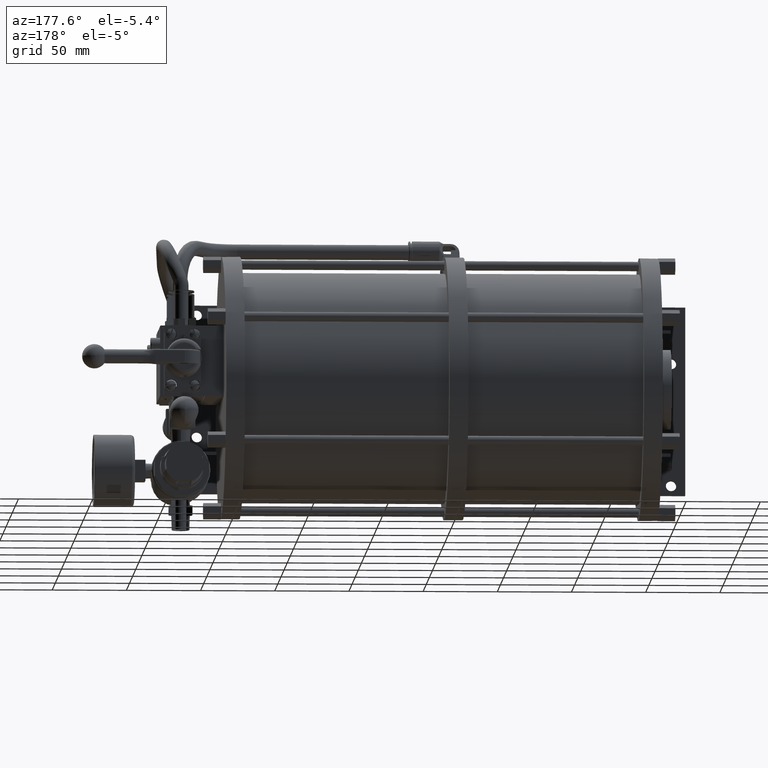
[diagram: clean part render]
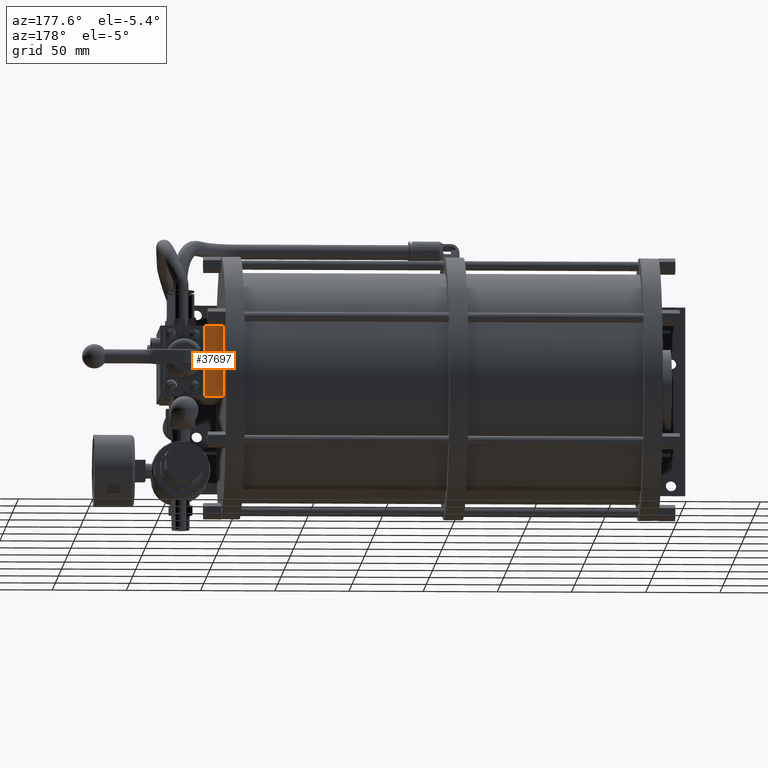
[diagram: same view with one face highlighted and labeled with its STEP entity id]
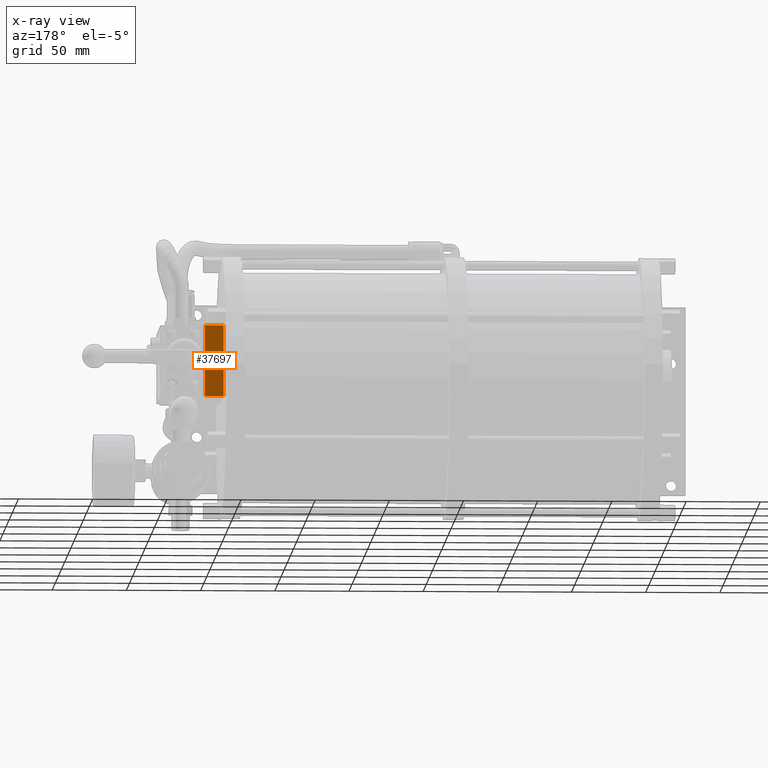
[diagram: x-ray of the same camera — body ghosted, the highlighted face saturated]
A machine part, auxiliary view. The second image highlights one B-rep face of the part: STEP entity #37697.
The next image is the same camera in x-ray: the body ghosted, the highlighted face saturated — about 0% of this face is hidden behind the body in this view.
In plain terms, the highlighted planar face has unit normal (0, 1, 0).
Its self-contained STEP definition (entity closure, byte-faithful):
#37510=DIRECTION('',(0.E0,0.E0,1.E0));
#37511=VECTOR('',#37510,4.7752E1);
#37512=CARTESIAN_POINT('',(1.505204E2,1.3335E2,-7.3152E1));
#37513=LINE('',#37512,#37511);
#37514=DIRECTION('',(-1.E0,0.E0,0.E0));
#37515=VECTOR('',#37514,1.27E1);
#37516=CARTESIAN_POINT('',(1.632204E2,1.3335E2,-7.3152E1));
#37517=LINE('',#37516,#37515);
#37518=DIRECTION('',(1.E0,0.E0,0.E0));
#37519=VECTOR('',#37518,1.27E1);
#37520=CARTESIAN_POINT('',(1.505204E2,1.3335E2,-2.54E1));
#37521=LINE('',#37520,#37519);
#37534=DIRECTION('',(0.E0,0.E0,-1.E0));
#37535=VECTOR('',#37534,4.7752E1);
#37536=CARTESIAN_POINT('',(1.632204E2,1.3335E2,-2.54E1));
#37537=LINE('',#37536,#37535);
#37599=CARTESIAN_POINT('',(1.505204E2,1.3335E2,-7.3152E1));
#37601=VERTEX_POINT('',#37599);
#37602=CARTESIAN_POINT('',(1.505204E2,1.3335E2,-2.54E1));
#37603=VERTEX_POINT('',#37602);
#37608=CARTESIAN_POINT('',(1.632204E2,1.3335E2,-7.3152E1));
#37609=VERTEX_POINT('',#37608);
#37612=CARTESIAN_POINT('',(1.632204E2,1.3335E2,-2.54E1));
#37613=VERTEX_POINT('',#37612);
#37685=CARTESIAN_POINT('',(1.568704E2,1.3335E2,-4.9276E1));
#37686=DIRECTION('',(0.E0,1.E0,0.E0));
#37687=DIRECTION('',(0.E0,0.E0,-1.E0));
#37688=AXIS2_PLACEMENT_3D('',#37685,#37686,#37687);
#37689=PLANE('',#37688);
#37690=ORIENTED_EDGE('',*,*,#37621,.F.);
#37691=ORIENTED_EDGE('',*,*,#37652,.F.);
#37693=ORIENTED_EDGE('',*,*,#37692,.F.);
#37694=ORIENTED_EDGE('',*,*,#37677,.F.);
#37695=EDGE_LOOP('',(#37690,#37691,#37693,#37694));
#37696=FACE_OUTER_BOUND('',#37695,.F.);
#37697=ADVANCED_FACE('',(#37696),#37689,.T.);
#37621=EDGE_CURVE('',#37601,#37603,#37513,.T.);
#37652=EDGE_CURVE('',#37609,#37601,#37517,.T.);
#37677=EDGE_CURVE('',#37603,#37613,#37521,.T.);
#37692=EDGE_CURVE('',#37613,#37609,#37537,.T.);